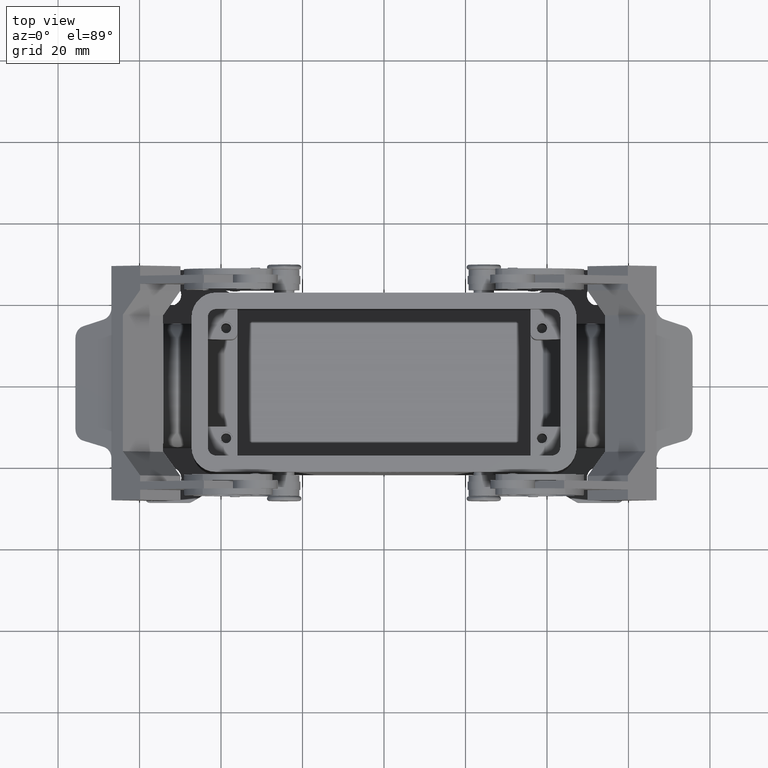
[diagram: clean part render]
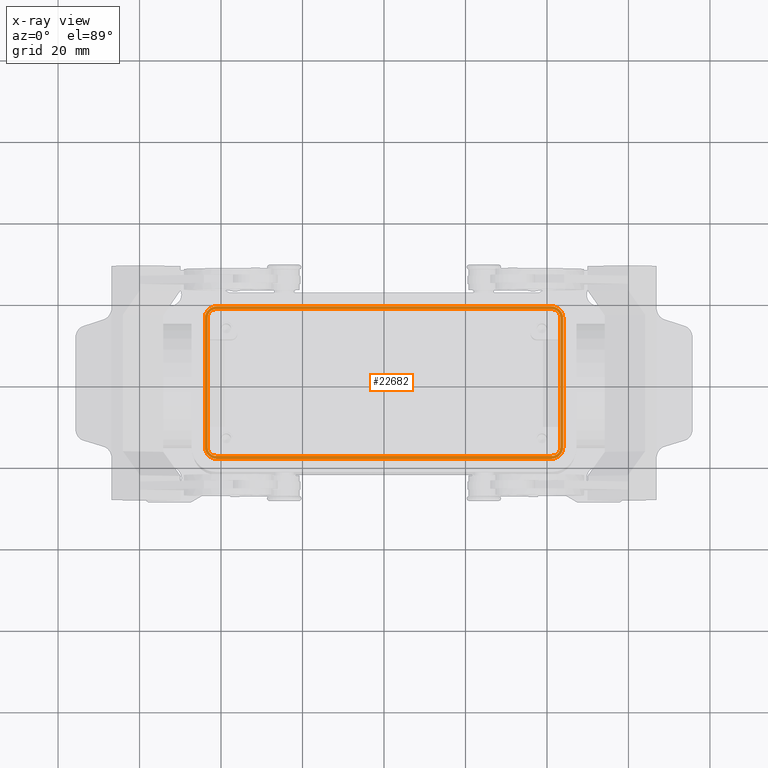
[diagram: x-ray — body ghosted, one internal face saturated and labeled with its STEP entity id]
A machine part, top view, then the same camera in x-ray: the body is ghosted and one INTERNAL B-rep face — a face not visible from any outside direction — is saturated and labeled: STEP entity #22682.
In plain terms, the highlighted planar face has unit normal (0, 0, 1).
Its self-contained STEP definition (entity closure, byte-faithful):
#9648=CARTESIAN_POINT('',(-43.999999999999986,15.749999999999996,23.500000000000000));
#9649=VERTEX_POINT('',#9648);
#9656=CARTESIAN_POINT('',(-43.999999999999986,-15.750000000000007,23.500000000000000));
#9657=VERTEX_POINT('',#9656);
#9658=CARTESIAN_POINT('',(-43.999999999999986,-15.750000000000007,23.500000000000000));
#9659=DIRECTION('',(0.0,1.0,0.0));
#9660=VECTOR('',#9659,31.500000000000004);
#9661=LINE('',#9658,#9660);
#9662=EDGE_CURVE('',#9657,#9649,#9661,.T.);
#20556=CARTESIAN_POINT('',(43.999999999999986,-15.749999999999991,23.500000000000000));
#20557=VERTEX_POINT('',#20556);
#20564=CARTESIAN_POINT('',(43.999999999999986,15.750000000000004,23.500000000000000));
#20565=VERTEX_POINT('',#20564);
#20566=CARTESIAN_POINT('',(43.999999999999986,15.750000000000004,23.500000000000000));
#20567=DIRECTION('',(0.0,-1.0,0.0));
#20568=VECTOR('',#20567,31.499999999999993);
#20569=LINE('',#20566,#20568);
#20570=EDGE_CURVE('',#20565,#20557,#20569,.T.);
#20730=CARTESIAN_POINT('',(-41.0,-18.750000000000014,23.500000000000000));
#20731=VERTEX_POINT('',#20730);
#20738=CARTESIAN_POINT('',(41.0,-18.749999999999996,23.500000000000000));
#20739=VERTEX_POINT('',#20738);
#20740=CARTESIAN_POINT('',(41.0,-18.749999999999996,23.500000000000000));
#20741=DIRECTION('',(-1.0,0.0,0.0));
#20742=VECTOR('',#20741,82.0);
#20743=LINE('',#20740,#20742);
#20744=EDGE_CURVE('',#20739,#20731,#20743,.T.);
#20783=CARTESIAN_POINT('',(-41.0,-15.750000000000007,23.500000000000000));
#20784=DIRECTION('',(0.0,0.0,-1.0));
#20785=DIRECTION('',(-1.0,0.0,0.0));
#20786=AXIS2_PLACEMENT_3D('',#20783,#20784,#20785);
#20787=CIRCLE('',#20786,3.000000000000000);
#20788=EDGE_CURVE('',#20731,#9657,#20787,.T.);
#20896=CARTESIAN_POINT('',(41.0,18.750000000000004,23.500000000000000));
#20897=VERTEX_POINT('',#20896);
#20904=CARTESIAN_POINT('',(-41.0,18.749999999999989,23.500000000000000));
#20905=VERTEX_POINT('',#20904);
#20906=CARTESIAN_POINT('',(-41.0,18.749999999999989,23.500000000000000));
#20907=DIRECTION('',(1.0,0.0,0.0));
#20908=VECTOR('',#20907,82.0);
#20909=LINE('',#20906,#20908);
#20910=EDGE_CURVE('',#20905,#20897,#20909,.T.);
#20946=CARTESIAN_POINT('',(41.0,15.750000000000000,23.500000000000000));
#20947=DIRECTION('',(0.0,0.0,-1.0));
#20948=DIRECTION('',(1.0,0.0,0.0));
#20949=AXIS2_PLACEMENT_3D('',#20946,#20947,#20948);
#20950=CIRCLE('',#20949,3.000000000000000);
#20951=EDGE_CURVE('',#20897,#20565,#20950,.T.);
#22585=CARTESIAN_POINT('',(-1.110223E-015,1.249001E-015,23.500000000000007));
#22586=DIRECTION('',(0.0,0.0,1.0));
#22587=DIRECTION('',(1.0,0.0,0.0));
#22588=AXIS2_PLACEMENT_3D('',#22585,#22586,#22587);
#22589=PLANE('',#22588);
#22590=ORIENTED_EDGE('',*,*,#20951,.T.);
#22591=ORIENTED_EDGE('',*,*,#20570,.T.);
#22592=CARTESIAN_POINT('',(41.0,-15.749999999999991,23.500000000000000));
#22593=DIRECTION('',(0.0,0.0,-1.0));
#22594=DIRECTION('',(0.0,-1.0,0.0));
#22595=AXIS2_PLACEMENT_3D('',#22592,#22593,#22594);
#22596=CIRCLE('',#22595,3.000000000000000);
#22597=EDGE_CURVE('',#20557,#20739,#22596,.T.);
#22598=ORIENTED_EDGE('',*,*,#22597,.T.);
#22599=ORIENTED_EDGE('',*,*,#20744,.T.);
#22600=ORIENTED_EDGE('',*,*,#20788,.T.);
#22601=ORIENTED_EDGE('',*,*,#9662,.T.);
#22602=CARTESIAN_POINT('',(-41.0,15.749999999999984,23.500000000000000));
#22603=DIRECTION('',(0.0,0.0,-1.0));
#22604=DIRECTION('',(0.0,1.0,0.0));
#22605=AXIS2_PLACEMENT_3D('',#22602,#22603,#22604);
#22606=CIRCLE('',#22605,3.0);
#22607=EDGE_CURVE('',#9649,#20905,#22606,.T.);
#22608=ORIENTED_EDGE('',*,*,#22607,.T.);
#22609=ORIENTED_EDGE('',*,*,#20910,.T.);
#22610=EDGE_LOOP('',(#22590,#22591,#22598,#22599,#22600,#22601,#22608,#22609));
#22611=FACE_OUTER_BOUND('',#22610,.T.);
#22612=CARTESIAN_POINT('',(43.250000000000014,15.999999999999996,23.500000000000007));
#22613=VERTEX_POINT('',#22612);
#22614=CARTESIAN_POINT('',(41.250000000000000,18.0,23.500000000000007));
#22615=VERTEX_POINT('',#22614);
#22616=CARTESIAN_POINT('',(41.250000000000000,15.999999999999996,23.500000000000007));
#22617=DIRECTION('',(0.0,0.0,1.0));
#22618=DIRECTION('',(1.0,0.0,0.0));
#22619=AXIS2_PLACEMENT_3D('',#22616,#22617,#22618);
#22620=CIRCLE('',#22619,2.000000000000001);
#22621=EDGE_CURVE('',#22613,#22615,#22620,.T.);
#22622=ORIENTED_EDGE('',*,*,#22621,.T.);
#22623=CARTESIAN_POINT('',(-41.250000000000000,18.0,23.500000000000007));
#22624=VERTEX_POINT('',#22623);
#22625=CARTESIAN_POINT('',(41.250000000000000,18.0,23.500000000000007));
#22626=DIRECTION('',(-1.0,0.0,0.0));
#22627=VECTOR('',#22626,82.500000000000000);
#22628=LINE('',#22625,#22627);
#22629=EDGE_CURVE('',#22615,#22624,#22628,.T.);
#22630=ORIENTED_EDGE('',*,*,#22629,.T.);
#22631=CARTESIAN_POINT('',(-43.250000000000021,15.999999999999996,23.500000000000007));
#22632=VERTEX_POINT('',#22631);
#22633=CARTESIAN_POINT('',(-41.250000000000000,15.999999999999996,23.500000000000007));
#22634=DIRECTION('',(0.0,0.0,1.0));
#22635=DIRECTION('',(0.0,1.0,0.0));
#22636=AXIS2_PLACEMENT_3D('',#22633,#22634,#22635);
#22637=CIRCLE('',#22636,2.000000000000001);
#22638=EDGE_CURVE('',#22624,#22632,#22637,.T.);
#22639=ORIENTED_EDGE('',*,*,#22638,.T.);
#22640=CARTESIAN_POINT('',(-43.250000000000021,-15.999999999999996,23.500000000000007));
#22641=VERTEX_POINT('',#22640);
#22642=CARTESIAN_POINT('',(-43.250000000000021,15.999999999999996,23.500000000000007));
#22643=DIRECTION('',(0.0,-1.0,0.0));
#22644=VECTOR('',#22643,31.999999999999993);
#22645=LINE('',#22642,#22644);
#22646=EDGE_CURVE('',#22632,#22641,#22645,.T.);
#22647=ORIENTED_EDGE('',*,*,#22646,.T.);
#22648=CARTESIAN_POINT('',(-41.250000000000007,-18.000000000000004,23.500000000000007));
#22649=VERTEX_POINT('',#22648);
#22650=CARTESIAN_POINT('',(-41.250000000000007,-15.999999999999996,23.500000000000007));
#22651=DIRECTION('',(0.0,0.0,1.0));
#22652=DIRECTION('',(-1.0,0.0,0.0));
#22653=AXIS2_PLACEMENT_3D('',#22650,#22651,#22652);
#22654=CIRCLE('',#22653,2.000000000000001);
#22655=EDGE_CURVE('',#22641,#22649,#22654,.T.);
#22656=ORIENTED_EDGE('',*,*,#22655,.T.);
#22657=CARTESIAN_POINT('',(41.250000000000007,-18.000000000000004,23.500000000000007));
#22658=VERTEX_POINT('',#22657);
#22659=CARTESIAN_POINT('',(-41.250000000000007,-18.000000000000004,23.500000000000007));
#22660=DIRECTION('',(1.0,0.0,0.0));
#22661=VECTOR('',#22660,82.500000000000014);
#22662=LINE('',#22659,#22661);
#22663=EDGE_CURVE('',#22649,#22658,#22662,.T.);
#22664=ORIENTED_EDGE('',*,*,#22663,.T.);
#22665=CARTESIAN_POINT('',(43.250000000000014,-15.999999999999996,23.500000000000007));
#22666=VERTEX_POINT('',#22665);
#22667=CARTESIAN_POINT('',(41.250000000000000,-15.999999999999996,23.500000000000007));
#22668=DIRECTION('',(0.0,0.0,1.0));
#22669=DIRECTION('',(0.0,-1.0,0.0));
#22670=AXIS2_PLACEMENT_3D('',#22667,#22668,#22669);
#22671=CIRCLE('',#22670,2.000000000000000);
#22672=EDGE_CURVE('',#22658,#22666,#22671,.T.);
#22673=ORIENTED_EDGE('',*,*,#22672,.T.);
#22674=CARTESIAN_POINT('',(43.250000000000014,-15.999999999999996,23.500000000000007));
#22675=DIRECTION('',(0.0,1.0,0.0));
#22676=VECTOR('',#22675,31.999999999999993);
#22677=LINE('',#22674,#22676);
#22678=EDGE_CURVE('',#22666,#22613,#22677,.T.);
#22679=ORIENTED_EDGE('',*,*,#22678,.T.);
#22680=EDGE_LOOP('',(#22622,#22630,#22639,#22647,#22656,#22664,#22673,#22679));
#22681=FACE_BOUND('',#22680,.T.);
#22682=ADVANCED_FACE('',(#22611,#22681),#22589,.F.);